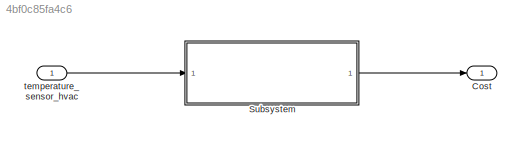
MODEL slx_4bf0c85fa4c6
KIND model
CONFIG AbsTol = auto
CONFIG EnableMultiTasking = off
CONFIG FixedStep = auto
CONFIG MaxStep = auto
CONFIG MinStep = auto
CONFIG RelTol = 1e-3
CONFIG SampleTimeConstraint = Unconstrained
CONFIG SolverName = VariableStepAuto
CONFIG StartTime = 0.0
CONFIG StopTime = 10.0
BLOCK [Outport] Cost
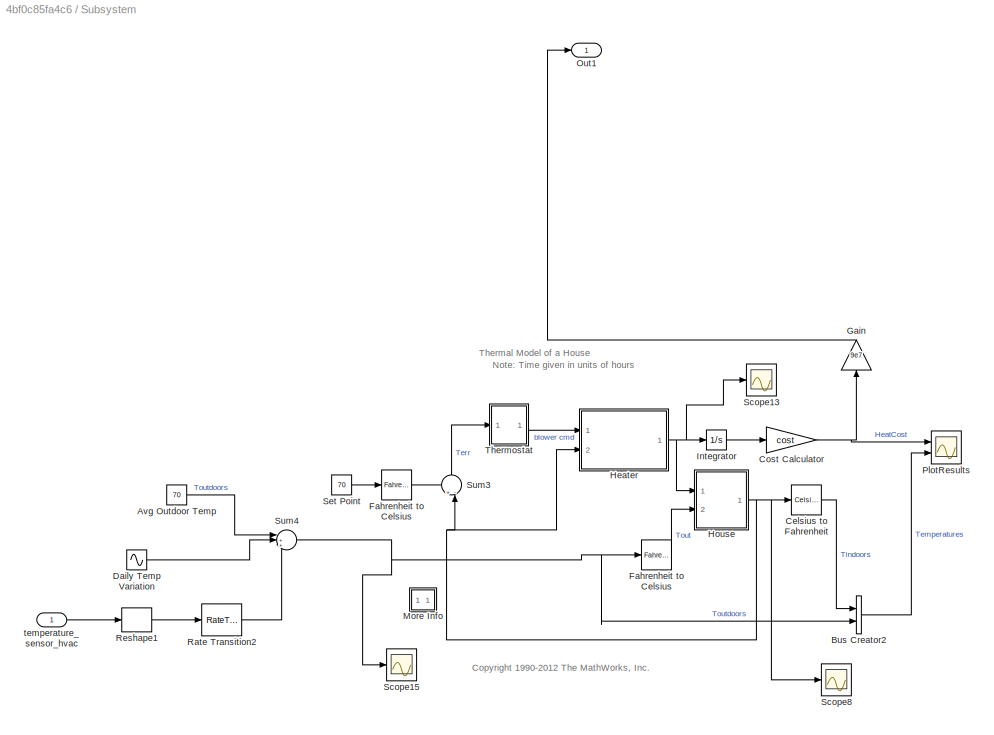
BLOCK [SubSystem] Subsystem
  Ports = [1, 1]
  RequestExecContextInheritance = off
BLOCK [Constant] Subsystem/Avg Outdoor Temp
  Value = 70
BLOCK [BusCreator] Subsystem/Bus Creator2
  DisplayOption = bar
  InheritFromInputs = on
  Inputs = 2
  Ports = [2, 1]
BLOCK [Reference] Subsystem/Celsius to Fahrenheit  REF=simulink_extras/Transformations/Celsius to
Fahrenheit
  Ports = [1, 1]
  SourceBlock = simulink_extras/Transformations/Celsius to\nFahrenheit
  SourceProductBaseCode = SL
  SourceType = CelsiusToFahrenheit
BLOCK [Gain] Subsystem/Cost Calculator
  Gain = cost
  OutDataTypeStr = Inherit: Same as input
  ParamDataTypeStr = Inherit: Same as input
  SaturateOnIntegerOverflow = on
BLOCK [Sin] Subsystem/Daily Temp Variation
  Amplitude = -7
  Frequency = 2*pi/120
  Ports = [0, 1]
  SampleTime = 0
BLOCK [Reference] Subsystem/Fahrenheit to Celsius  REF=simulink_extras/Transformations/Fahrenheit
to Celsius
  Ports = [1, 1]
  SourceBlock = simulink_extras/Transformations/Fahrenheit\nto Celsius
  SourceProductBaseCode = SL
  SourceType = FahrenheitToCelsius
BLOCK [Reference] Subsystem/Fahrenheit to Celsius   REF=simulink_extras/Transformations/Fahrenheit
to Celsius
  NameLocation = top
  Ports = [1, 1]
  SourceBlock = simulink_extras/Transformations/Fahrenheit\nto Celsius
  SourceProductBaseCode = SL
  SourceType = FahrenheitToCelsius
BLOCK [Gain] Subsystem/Gain
  Gain = 9e7
  NameLocation = right
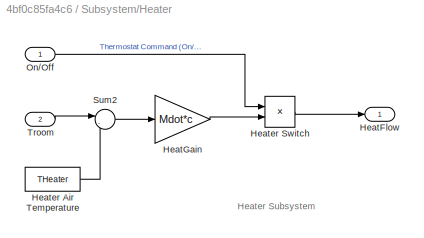
BLOCK [SubSystem] Subsystem/Heater
  Ports = [2, 1]
  RequestExecContextInheritance = off
BLOCK [Outport] Subsystem/Heater/HeatFlow
  VectorParamsAs1DForOutWhenUnconnected = off
BLOCK [Gain] Subsystem/Heater/HeatGain
  Gain = Mdot*c
BLOCK [Constant] Subsystem/Heater/Heater Air Temperature
  Value = THeater
BLOCK [Product] Subsystem/Heater/Heater Switch
  Ports = [2, 1]
  RndMeth = Zero
BLOCK [Inport] Subsystem/Heater/On//Off
BLOCK [Sum] Subsystem/Heater/Sum2
  Inputs = |-+
  Ports = [2, 1]
BLOCK [Inport] Subsystem/Heater/Troom
  Port = 2
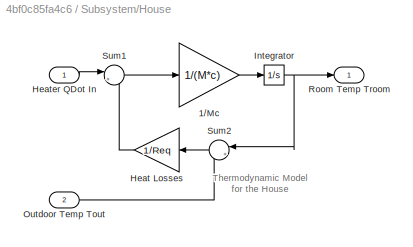
BLOCK [SubSystem] Subsystem/House
  Ports = [2, 1]
  RequestExecContextInheritance = off
BLOCK [Gain] Subsystem/House/1//Mc
  Gain = 1/(M*c)
  OutDataTypeStr = Inherit: Same as input
  ParamDataTypeStr = Inherit: Same as input
  SaturateOnIntegerOverflow = on
BLOCK [Gain] Subsystem/House/Heat Losses
  Gain = 1/Req
  OutDataTypeStr = Inherit: Same as input
  ParamDataTypeStr = Inherit: Same as input
  SaturateOnIntegerOverflow = on
BLOCK [Inport] Subsystem/House/Heater QDot In
BLOCK [Integrator] Subsystem/House/Integrator
  InitialCondition = TinIC
  Ports = [1, 1]
BLOCK [Inport] Subsystem/House/Outdoor Temp Tout
  Port = 2
BLOCK [Outport] Subsystem/House/Room Temp Troom
  InitialOutput = 0
  VectorParamsAs1DForOutWhenUnconnected = off
BLOCK [Sum] Subsystem/House/Sum1
  InputSameDT = on
  Inputs = |+-
  OutDataTypeStr = Inherit: Same as first input
  Ports = [2, 1]
  SaturateOnIntegerOverflow = on
BLOCK [Sum] Subsystem/House/Sum2
  InputSameDT = on
  Inputs = |+-
  OutDataTypeStr = Inherit: Same as first input
  Ports = [2, 1]
  SaturateOnIntegerOverflow = on
BLOCK [Integrator] Subsystem/Integrator
  InitialCondition = TinIC
  Ports = [1, 1]
BLOCK [SubSystem] Subsystem/More Info
  OpenFcn = showExample('simulink_general/sldemo_househeatExample')
  Ports = []
  RequestExecContextInheritance = off
BLOCK [Outport] Subsystem/Out1
BLOCK [Scope] Subsystem/PlotResults
  Floating = off
  NumInputPorts = 2
  Ports = [2]
  ScopeSpecificationString = Simulink.scopes.TimeScopeBlockCfg('CurrentConfiguration', extmgr.ConfigurationSet(extmgr.Configuration('Core','General UI',true),extmgr.Configuration('Core','Source UI',true),extmgr.Configuration('Sources','WiredSimulink',true,'DataLoggingVariableName','ScopeData2','DataLoggingSaveFormat','Array','DataLoggingDecimation','1','DataLoggingDecimateData',true),extmgr.Configuration('Visuals','Time Domai...<+2402ch>
BLOCK [RateTransition] Subsystem/Rate Transition2
BLOCK [Reshape] Subsystem/Reshape1
  Ports = [1, 1]
BLOCK [Scope] Subsystem/Scope13
  Floating = off
  NumInputPorts = 1
  Ports = [1]
  ScopeSpecificationString = Simulink.scopes.TimeScopeBlockCfg('CurrentConfiguration', extmgr.ConfigurationSet(extmgr.Configuration('Core','General UI',true),extmgr.Configuration('Core','Source UI',true),extmgr.Configuration('Sources','WiredSimulink',true,'DataLoggingVariableName','ScopeData7'),extmgr.Configuration('Visuals','Time Domain',true,'SerializedDisplays',{struct('MinYLimReal','-14326950.00000','MaxYLimReal','1289425...<+1451ch>
BLOCK [Scope] Subsystem/Scope15
  Floating = off
  NumInputPorts = 1
  Ports = [1]
  ScopeSpecificationString = Simulink.scopes.TimeScopeBlockCfg('CurrentConfiguration', extmgr.ConfigurationSet(extmgr.Configuration('Core','General UI',true),extmgr.Configuration('Core','Source UI',true),extmgr.Configuration('Sources','WiredSimulink',true,'DataLoggingVariableName','ScopeData1'),extmgr.Configuration('Visuals','Time Domain',true,'SerializedDisplays',{struct('MinYLimReal','38.84695','MaxYLimReal','51.23923','YLa...<+1462ch>
BLOCK [Scope] Subsystem/Scope8
  Commented = on
  Floating = off
  NumInputPorts = 1
  Ports = [1]
  ScopeSpecificationString = Simulink.scopes.TimeScopeBlockCfg('CurrentConfiguration', extmgr.ConfigurationSet(extmgr.Configuration('Core','General UI',true),extmgr.Configuration('Core','Source UI',true),extmgr.Configuration('Sources','WiredSimulink',true,'DataLoggingVariableName','ScopeData15'),extmgr.Configuration('Visuals','Time Domain',true,'SerializedDisplays',{struct('MinYLimReal','-659.79648','MaxYLimReal','6137.72071'...<+1383ch>
BLOCK [Constant] Subsystem/Set Point
  NameLocation = top
  Value = 70
BLOCK [Sum] Subsystem/Sum3
  InputSameDT = on
  Inputs = +-|
  NameLocation = right
  OutDataTypeStr = Inherit: Same as first input
  Ports = [2, 1]
  SaturateOnIntegerOverflow = on
BLOCK [Sum] Subsystem/Sum4
  Inputs = |+++
  Ports = [3, 1]
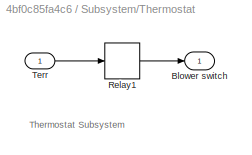
BLOCK [SubSystem] Subsystem/Thermostat
  Ports = [1, 1]
  RequestExecContextInheritance = off
BLOCK [Outport] Subsystem/Thermostat/Blower switch
  InitialOutput = 0
  VectorParamsAs1DForOutWhenUnconnected = off
BLOCK [Relay] Subsystem/Thermostat/Relay1
  OffSwitchValue = -5*(5/9)
  OnSwitchValue = 5*(5/9)
BLOCK [Inport] Subsystem/Thermostat/Terr
BLOCK [Inport] Subsystem/temperature_sensor_hvac
BLOCK [Inport] temperature_sensor_hvac
ANNOTATION Subsystem: <copyright redacted>
ANNOTATION Subsystem: Note: Time given in units of hours
ANNOTATION Subsystem: Thermal Model of a House
ANNOTATION Subsystem/Heater: Heater Subsystem
ANNOTATION Subsystem/House: Thermodynamic Model for the House
ANNOTATION Subsystem/Thermostat: Thermostat Subsystem
LINE Subsystem/Avg Outdoor Temp:1 -> Subsystem/Sum4:1
LINE Subsystem/Bus Creator2:1 -> Subsystem/PlotResults:2
LINE Subsystem/Celsius to Fahrenheit:1 -> Subsystem/Bus Creator2:1
NET Subsystem/Cost Calculator:1 -> Subsystem/Gain:1, Subsystem/PlotResults:1
LINE Subsystem/Daily Temp Variation:1 -> Subsystem/Sum4:2
LINE Subsystem/Fahrenheit to Celsius :1 -> Subsystem/Sum3:1
LINE Subsystem/Fahrenheit to Celsius:1 -> Subsystem/House:2
LINE Subsystem/Gain:1 -> Subsystem/Out1:1
LINE Subsystem/Heater/HeatGain:1 -> Subsystem/Heater/Heater Switch:2
LINE Subsystem/Heater/Heater Air Temperature:1 -> Subsystem/Heater/Sum2:2
LINE Subsystem/Heater/Heater Switch:1 -> Subsystem/Heater/HeatFlow:1
LINE Subsystem/Heater/On//Off:1 -> Subsystem/Heater/Heater Switch:1
LINE Subsystem/Heater/Sum2:1 -> Subsystem/Heater/HeatGain:1
LINE Subsystem/Heater/Troom:1 -> Subsystem/Heater/Sum2:1
NET Subsystem/Heater:1 -> Subsystem/House:1, Subsystem/Integrator:1, Subsystem/Scope13:1
LINE Subsystem/House/1//Mc:1 -> Subsystem/House/Integrator:1
LINE Subsystem/House/Heat Losses:1 -> Subsystem/House/Sum1:2
LINE Subsystem/House/Heater QDot In:1 -> Subsystem/House/Sum1:1
NET Subsystem/House/Integrator:1 -> Subsystem/House/Room Temp Troom:1, Subsystem/House/Sum2:1
LINE Subsystem/House/Outdoor Temp Tout:1 -> Subsystem/House/Sum2:2
LINE Subsystem/House/Sum1:1 -> Subsystem/House/1//Mc:1
LINE Subsystem/House/Sum2:1 -> Subsystem/House/Heat Losses:1
NET Subsystem/House:1 -> Subsystem/Celsius to Fahrenheit:1, Subsystem/Heater:2, Subsystem/Scope8:1, Subsystem/Sum3:2
LINE Subsystem/Integrator:1 -> Subsystem/Cost Calculator:1
LINE Subsystem/Rate Transition2:1 -> Subsystem/Sum4:3
LINE Subsystem/Reshape1:1 -> Subsystem/Rate Transition2:1
LINE Subsystem/Set Point:1 -> Subsystem/Fahrenheit to Celsius :1
LINE Subsystem/Sum3:1 -> Subsystem/Thermostat:1
NET Subsystem/Sum4:1 -> Subsystem/Bus Creator2:2, Subsystem/Fahrenheit to Celsius:1, Subsystem/Scope15:1
LINE Subsystem/Thermostat/Relay1:1 -> Subsystem/Thermostat/Blower switch:1
LINE Subsystem/Thermostat/Terr:1 -> Subsystem/Thermostat/Relay1:1
LINE Subsystem/Thermostat:1 -> Subsystem/Heater:1
LINE Subsystem/temperature_sensor_hvac:1 -> Subsystem/Reshape1:1
LINE Subsystem:1 -> Cost:1
LINE temperature_sensor_hvac:1 -> Subsystem:1
note: NET lines group one-source signal fan-out (src -> all destinations, sorted); 1:1 wires keep LINE
